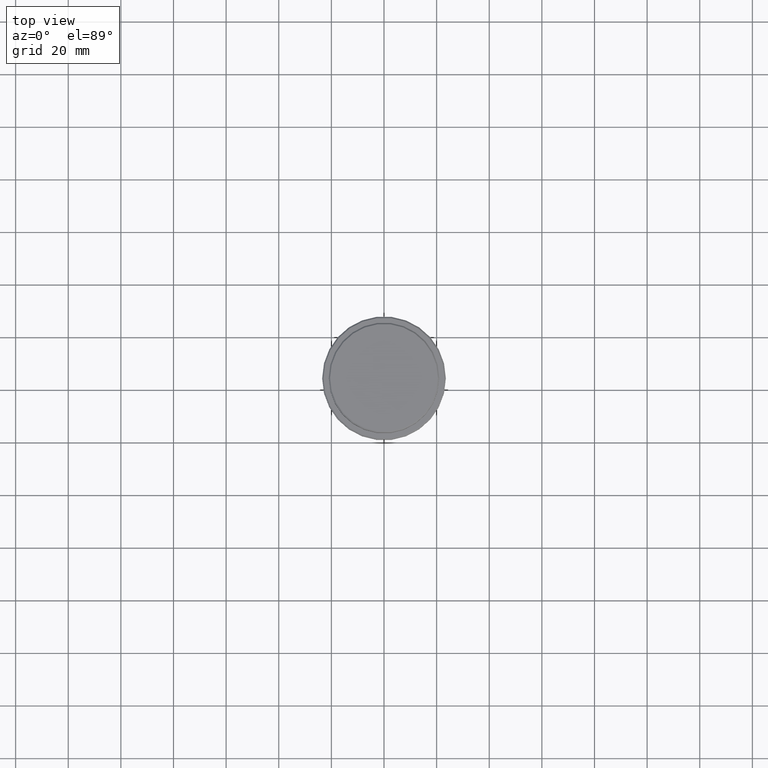
[diagram: clean part render]
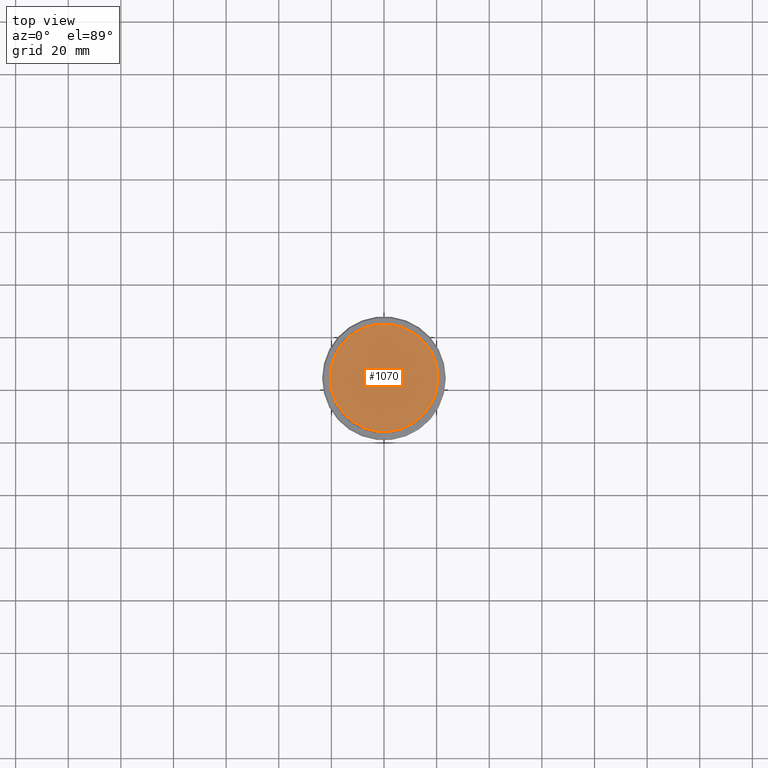
[diagram: same view with one face highlighted and labeled with its STEP entity id]
A machine part, top view. The second image highlights one B-rep face of the part: STEP entity #1070.
In plain terms, the highlighted planar face has unit normal (0, -0, 1).
Its self-contained STEP definition (entity closure, byte-faithful):
#111 = CARTESIAN_POINT ( 'NONE',  ( -20.49999999999990763, 0.000000000000000000, 0.000000000000000000 ) ) ;
#190 = ORIENTED_EDGE ( 'NONE', *, *, #1347, .T. ) ;
#224 = CARTESIAN_POINT ( 'NONE',  ( 0.000000000000000000, 0.000000000000000000, 0.000000000000000000 ) ) ;
#283 = DIRECTION ( 'NONE',  ( -0.000000000000000000, -0.000000000000000000, 1.000000000000000000 ) ) ;
#327 = EDGE_LOOP ( 'NONE', ( #502, #190 ) ) ;
#351 = PLANE ( 'NONE',  #401 ) ;
#401 = AXIS2_PLACEMENT_3D ( 'NONE', #224, #1324, #649 ) ;
#469 = CIRCLE ( 'NONE', #1206, 20.49999999999990763 ) ;
#502 = ORIENTED_EDGE ( 'NONE', *, *, #1369, .T. ) ;
#540 = VERTEX_POINT ( 'NONE', #1152 ) ;
#610 = VERTEX_POINT ( 'NONE', #111 ) ;
#649 = DIRECTION ( 'NONE',  ( 1.000000000000000000, 0.000000000000000000, 0.000000000000000000 ) ) ;
#754 = AXIS2_PLACEMENT_3D ( 'NONE', #1393, #1370, #1401 ) ;
#1070 = ADVANCED_FACE ( 'NONE', ( #1329 ), #351, .T. ) ;
#1147 = DIRECTION ( 'NONE',  ( 1.000000000000000000, 0.000000000000000000, 0.000000000000000000 ) ) ;
#1152 = CARTESIAN_POINT ( 'NONE',  ( 20.49999999999990763, 2.541142108230752352E-15, 0.000000000000000000 ) ) ;
#1206 = AXIS2_PLACEMENT_3D ( 'NONE', #1285, #283, #1147 ) ;
#1285 = CARTESIAN_POINT ( 'NONE',  ( 0.000000000000000000, 0.000000000000000000, 0.000000000000000000 ) ) ;
#1324 = DIRECTION ( 'NONE',  ( 0.000000000000000000, -0.000000000000000000, 1.000000000000000000 ) ) ;
#1329 = FACE_OUTER_BOUND ( 'NONE', #327, .T. ) ;
#1347 = EDGE_CURVE ( 'NONE', #540, #610, #1405, .T. ) ;
#1369 = EDGE_CURVE ( 'NONE', #610, #540, #469, .T. ) ;
#1370 = DIRECTION ( 'NONE',  ( -0.000000000000000000, -0.000000000000000000, 1.000000000000000000 ) ) ;
#1393 = CARTESIAN_POINT ( 'NONE',  ( 0.000000000000000000, 0.000000000000000000, 0.000000000000000000 ) ) ;
#1401 = DIRECTION ( 'NONE',  ( 1.000000000000000000, 0.000000000000000000, 0.000000000000000000 ) ) ;
#1405 = CIRCLE ( 'NONE', #754, 20.49999999999990763 ) ;